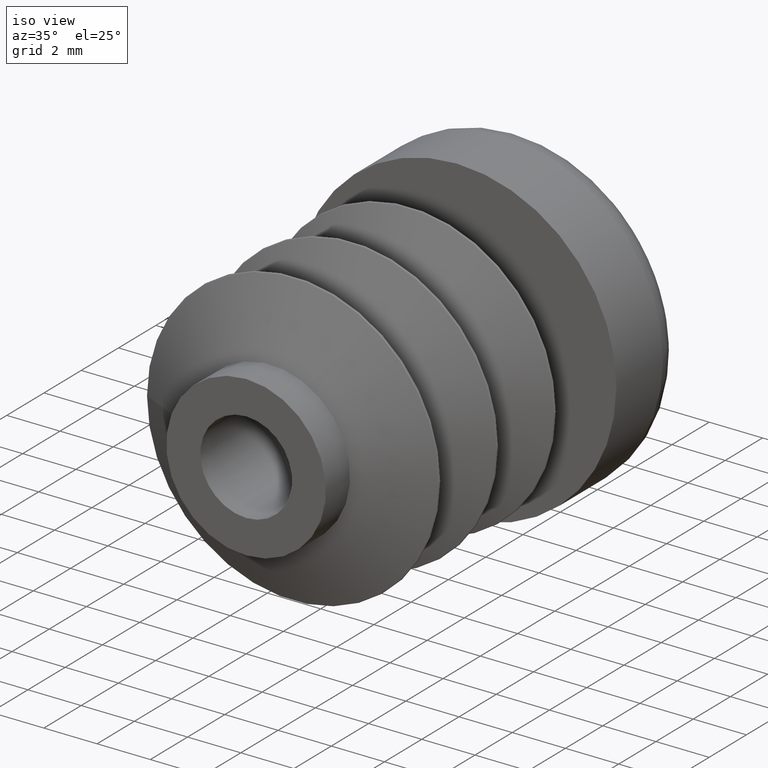
[diagram: clean part render]
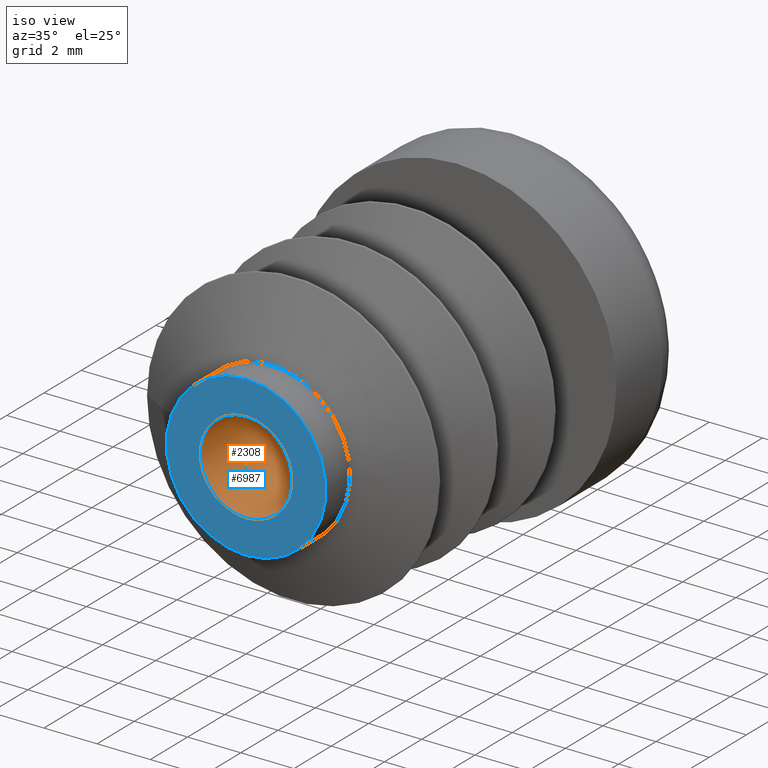
[diagram: same view with the hole feature highlighted: cylindrical wall and planar end face, labeled with their STEP entity ids]
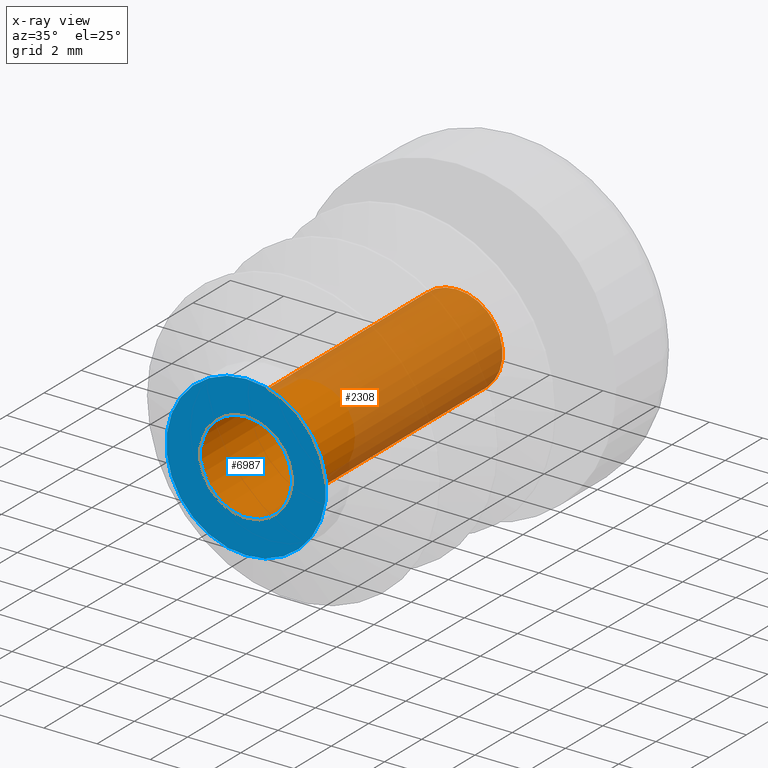
[diagram: x-ray of the same camera — body ghosted, the hole faces saturated]
A machine part, iso view. The highlighted faces form one hole feature of diameter 3.45 mm: the cylindrical wall (entity #2308, orange) and its adjacent planar end face (entity #6987, blue) — they share a circular edge in the B-rep.
The next image is the same camera in x-ray (body ghosted, the hole faces saturated) — the bore reads through the body.
Wall:
#2260 = AXIS2_PLACEMENT_3D ( 'NONE', #5978, #5190, #5945 ) ;
#2308 = ADVANCED_FACE ( 'NONE', ( #8046, #4124 ), #2468, .F. ) ;
#2452 = AXIS2_PLACEMENT_3D ( 'NONE', #8141, #2869, #3673 ) ;
#2468 = CYLINDRICAL_SURFACE ( 'NONE', #8220, 1.725000000000000755 ) ;
#2648 = CIRCLE ( 'NONE', #2260, 1.725000000000000755 ) ;
#2769 = DIRECTION ( 'NONE',  ( -0.000000000000000000, -1.000000000000000000, -0.000000000000000000 ) ) ;
#2825 = CARTESIAN_POINT ( 'NONE',  ( 0.000000000000000000, 11.29999999999999716, 0.000000000000000000 ) ) ;
#2869 = DIRECTION ( 'NONE',  ( -0.000000000000000000, -1.000000000000000000, -0.000000000000000000 ) ) ;
#2963 = VERTEX_POINT ( 'NONE', #5300 ) ;
#3030 = EDGE_LOOP ( 'NONE', ( #8959 ) ) ;
#3031 = ORIENTED_EDGE ( 'NONE', *, *, #6275, .F. ) ;
#3338 = EDGE_LOOP ( 'NONE', ( #3031 ) ) ;
#3673 = DIRECTION ( 'NONE',  ( 0.000000000000000000, 0.000000000000000000, -1.000000000000000000 ) ) ;
#4124 = FACE_OUTER_BOUND ( 'NONE', #3338, .T. ) ;
#5190 = DIRECTION ( 'NONE',  ( -0.000000000000000000, -1.000000000000000000, -0.000000000000000000 ) ) ;
#5300 = CARTESIAN_POINT ( 'NONE',  ( 0.000000000000000000, 11.29999999999999716, -1.725000000000000755 ) ) ;
#5564 = VERTEX_POINT ( 'NONE', #9854 ) ;
#5945 = DIRECTION ( 'NONE',  ( 0.000000000000000000, 0.000000000000000000, -1.000000000000000000 ) ) ;
#5978 = CARTESIAN_POINT ( 'NONE',  ( 0.000000000000000000, 11.29999999999999716, 0.000000000000000000 ) ) ;
#6275 = EDGE_CURVE ( 'NONE', #2963, #2963, #2648, .T. ) ;
#6369 = EDGE_CURVE ( 'NONE', #5564, #5564, #7498, .T. ) ;
#6528 = DIRECTION ( 'NONE',  ( 0.000000000000000000, 0.000000000000000000, -1.000000000000000000 ) ) ;
#7498 = CIRCLE ( 'NONE', #2452, 1.725000000000000755 ) ;
#8046 = FACE_OUTER_BOUND ( 'NONE', #3030, .T. ) ;
#8141 = CARTESIAN_POINT ( 'NONE',  ( 0.000000000000000000, -3.469446951953614189E-15, 0.000000000000000000 ) ) ;
#8220 = AXIS2_PLACEMENT_3D ( 'NONE', #2825, #2769, #6528 ) ;
#8959 = ORIENTED_EDGE ( 'NONE', *, *, #6369, .T. ) ;
#9854 = CARTESIAN_POINT ( 'NONE',  ( 0.000000000000000000, -3.469446951953614189E-15, -1.725000000000000755 ) ) ;
End face:
#1017 = EDGE_LOOP ( 'NONE', ( #3861 ) ) ;
#1393 = AXIS2_PLACEMENT_3D ( 'NONE', #3361, #6359, #1812 ) ;
#1812 = DIRECTION ( 'NONE',  ( 0.000000000000000000, 0.000000000000000000, -1.000000000000000000 ) ) ;
#2038 = FACE_BOUND ( 'NONE', #1017, .T. ) ;
#2392 = FACE_OUTER_BOUND ( 'NONE', #8879, .T. ) ;
#2452 = AXIS2_PLACEMENT_3D ( 'NONE', #8141, #2869, #3673 ) ;
#2658 = EDGE_CURVE ( 'NONE', #4517, #4517, #7195, .T. ) ;
#2869 = DIRECTION ( 'NONE',  ( -0.000000000000000000, -1.000000000000000000, -0.000000000000000000 ) ) ;
#3361 = CARTESIAN_POINT ( 'NONE',  ( 0.000000000000000000, -3.469446951953614189E-15, 0.000000000000000000 ) ) ;
#3596 = DIRECTION ( 'NONE',  ( 0.000000000000000000, -1.000000000000000000, -0.000000000000000000 ) ) ;
#3673 = DIRECTION ( 'NONE',  ( 0.000000000000000000, 0.000000000000000000, -1.000000000000000000 ) ) ;
#3861 = ORIENTED_EDGE ( 'NONE', *, *, #6369, .F. ) ;
#4517 = VERTEX_POINT ( 'NONE', #7478 ) ;
#5114 = DIRECTION ( 'NONE',  ( 0.000000000000000000, 0.000000000000000000, -1.000000000000000000 ) ) ;
#5138 = AXIS2_PLACEMENT_3D ( 'NONE', #9700, #3596, #5114 ) ;
#5564 = VERTEX_POINT ( 'NONE', #9854 ) ;
#6359 = DIRECTION ( 'NONE',  ( -0.000000000000000000, -1.000000000000000000, -0.000000000000000000 ) ) ;
#6369 = EDGE_CURVE ( 'NONE', #5564, #5564, #7498, .T. ) ;
#6666 = ORIENTED_EDGE ( 'NONE', *, *, #2658, .T. ) ;
#6987 = ADVANCED_FACE ( 'NONE', ( #2392, #2038 ), #8944, .T. ) ;
#7195 = CIRCLE ( 'NONE', #1393, 3.000000000000002665 ) ;
#7478 = CARTESIAN_POINT ( 'NONE',  ( 0.000000000000000000, -3.469446951953614189E-15, -3.000000000000002665 ) ) ;
#7498 = CIRCLE ( 'NONE', #2452, 1.725000000000000755 ) ;
#8141 = CARTESIAN_POINT ( 'NONE',  ( 0.000000000000000000, -3.469446951953614189E-15, 0.000000000000000000 ) ) ;
#8879 = EDGE_LOOP ( 'NONE', ( #6666 ) ) ;
#8944 = PLANE ( 'NONE',  #5138 ) ;
#9700 = CARTESIAN_POINT ( 'NONE',  ( 3.000000000000002665, -3.557916398207429452E-15, 0.000000000000000000 ) ) ;
#9854 = CARTESIAN_POINT ( 'NONE',  ( 0.000000000000000000, -3.469446951953614189E-15, -1.725000000000000755 ) ) ;